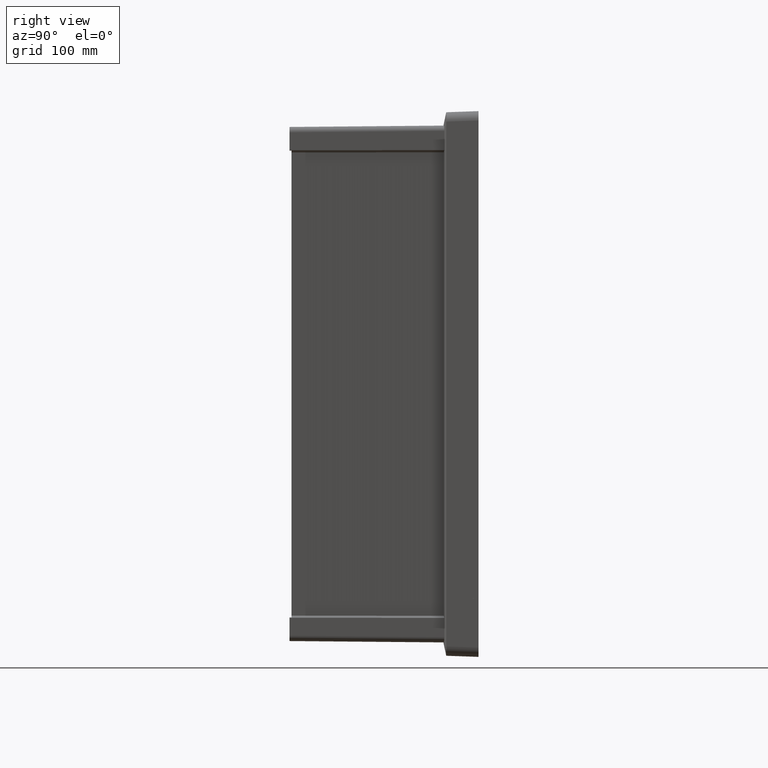
[diagram: clean part render]
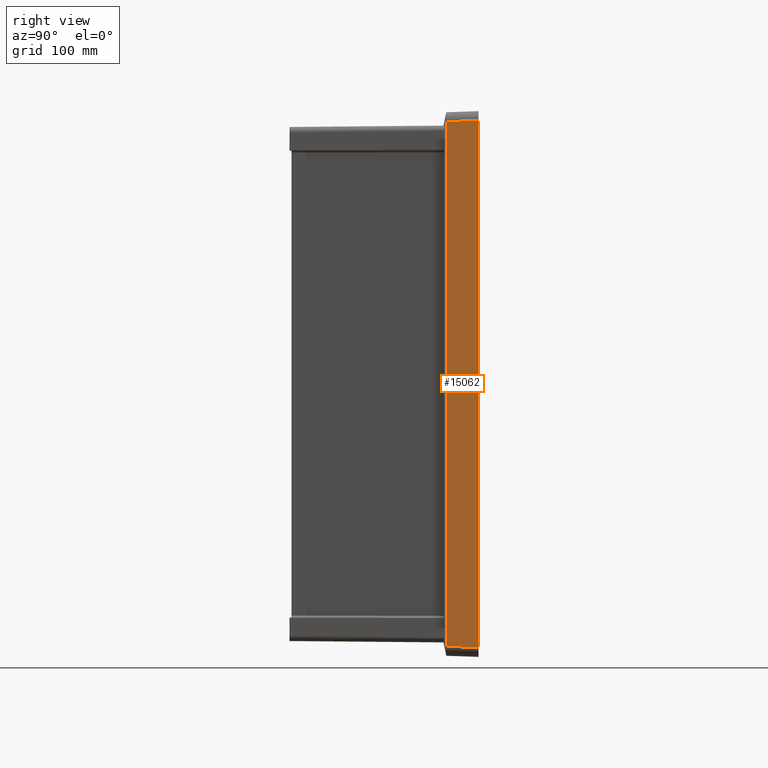
[diagram: same view with one face highlighted and labeled with its STEP entity id]
A machine part, right view. The second image highlights one B-rep face of the part: STEP entity #15062.
In plain terms, the highlighted planar face has unit normal (0.9994, -0.0349, 0).
Its self-contained STEP definition (entity closure, byte-faithful):
#75 = VERTEX_POINT ( 'NONE', #19405 ) ;
#1897 = CARTESIAN_POINT ( 'NONE',  ( 221.4024381772000300, 0.0000000000000000000, -266.7553565609000000 ) ) ;
#2245 = B_SPLINE_CURVE_WITH_KNOTS ( 'NONE', 3,
 ( #17256, #11283, #8299, #5272 ),
 .UNSPECIFIED., .F., .F.,
 ( 4, 4 ),
 ( 0.0000000000000000000, 1.000000000000000000 ),
 .UNSPECIFIED. ) ;
#2380 = CARTESIAN_POINT ( 'NONE',  ( 220.2591164273000000, -32.71282872151999800, -265.6291502733000100 ) ) ;
#3370 = VECTOR ( 'NONE', #3781, 1000.000000000000000 ) ;
#3482 = PLANE ( 'NONE',  #6160 ) ;
#3781 = DIRECTION ( 'NONE',  ( 0.0000000000000000000, 0.0000000000000000000, -1.000000000000000000 ) ) ;
#3804 = CARTESIAN_POINT ( 'NONE',  ( 221.4024381772000300, 0.0000000000000000000, -266.7553565609000000 ) ) ;
#4910 = CARTESIAN_POINT ( 'NONE',  ( 221.0216520685307600, -10.90428745500934600, -266.3799544650759700 ) ) ;
#5037 = ORIENTED_EDGE ( 'NONE', *, *, #19224, .T. ) ;
#5272 = CARTESIAN_POINT ( 'NONE',  ( 221.4024381772000300, 0.0000000000000000000, 266.7553565609000000 ) ) ;
#6160 = AXIS2_PLACEMENT_3D ( 'NONE', #26646, #23659, #20727 ) ;
#6824 = CARTESIAN_POINT ( 'NONE',  ( 221.4024381772000300, 0.0000000000000000000, 266.7553565609000000 ) ) ;
#6886 = VERTEX_POINT ( 'NONE', #3804 ) ;
#6931 = FACE_OUTER_BOUND ( 'NONE', #29062, .T. ) ;
#7936 = CARTESIAN_POINT ( 'NONE',  ( 220.6408659598427300, -21.80857491001585300, -266.0045523691879900 ) ) ;
#8299 = CARTESIAN_POINT ( 'NONE',  ( 221.0216520678692400, -10.90428747386286700, 266.3799550056317600 ) ) ;
#9799 = LINE ( 'NONE', #6824, #3370 ) ;
#10333 = B_SPLINE_CURVE_WITH_KNOTS ( 'NONE', 3,
 ( #2380, #28498, #25536, #22564 ),
 .UNSPECIFIED., .F., .F.,
 ( 4, 4 ),
 ( 0.0000000000000000000, 1.000000000000000000 ),
 .UNSPECIFIED. ) ;
#10500 = EDGE_CURVE ( 'NONE', #75, #14731, #2245, .T. ) ;
#10916 = CARTESIAN_POINT ( 'NONE',  ( 220.2591164273000000, -32.71282872151999800, -265.6291502733000100 ) ) ;
#11283 = CARTESIAN_POINT ( 'NONE',  ( 220.6408613889673800, -21.80857478815061200, 266.0045534502996200 ) ) ;
#14605 = ORIENTED_EDGE ( 'NONE', *, *, #10500, .F. ) ;
#14731 = VERTEX_POINT ( 'NONE', #20862 ) ;
#15062 = ADVANCED_FACE ( 'NONE', ( #6931 ), #3482, .T. ) ;
#17138 = EDGE_CURVE ( 'NONE', #28680, #75, #10333, .T. ) ;
#17256 = CARTESIAN_POINT ( 'NONE',  ( 220.2591164273000000, -32.71282872151999800, 265.6291502733000100 ) ) ;
#17723 = B_SPLINE_CURVE_WITH_KNOTS ( 'NONE', 3,
 ( #10916, #7936, #4910, #1897 ),
 .UNSPECIFIED., .F., .F.,
 ( 4, 4 ),
 ( 0.0000000000000000000, 1.000000000000000000 ),
 .UNSPECIFIED. ) ;
#19224 = EDGE_CURVE ( 'NONE', #28680, #6886, #17723, .T. ) ;
#19405 = CARTESIAN_POINT ( 'NONE',  ( 220.2591164273000000, -32.71282872151999800, 265.6291502733000100 ) ) ;
#20727 = DIRECTION ( 'NONE',  ( 0.03489949670249985200, 0.9993908270190956500, 0.0000000000000000000 ) ) ;
#20862 = CARTESIAN_POINT ( 'NONE',  ( 221.4024381772000300, 0.0000000000000000000, 266.7553565609000000 ) ) ;
#21405 = CARTESIAN_POINT ( 'NONE',  ( 220.2591164273000000, -32.71282872151999800, -265.6291502733000100 ) ) ;
#22564 = CARTESIAN_POINT ( 'NONE',  ( 220.2591164273000000, -32.71282872151999800, 265.6291502733000100 ) ) ;
#23659 = DIRECTION ( 'NONE',  ( 0.9993908270190957600, -0.03489949670249985900, 0.0000000000000000000 ) ) ;
#25536 = CARTESIAN_POINT ( 'NONE',  ( 220.2591167693666700, -32.71283033081707000, 88.54305009110017000 ) ) ;
#25598 = EDGE_CURVE ( 'NONE', #14731, #6886, #9799, .T. ) ;
#26262 = ORIENTED_EDGE ( 'NONE', *, *, #25598, .F. ) ;
#26646 = CARTESIAN_POINT ( 'NONE',  ( 221.3975633080999900, -0.1395979868099999900, -170.6471312404000000 ) ) ;
#27342 = ORIENTED_EDGE ( 'NONE', *, *, #17138, .F. ) ;
#28498 = CARTESIAN_POINT ( 'NONE',  ( 220.2591167693666700, -32.71283033081707000, -88.54305009110000000 ) ) ;
#28680 = VERTEX_POINT ( 'NONE', #21405 ) ;
#29062 = EDGE_LOOP ( 'NONE', ( #14605, #27342, #5037, #26262 ) ) ;